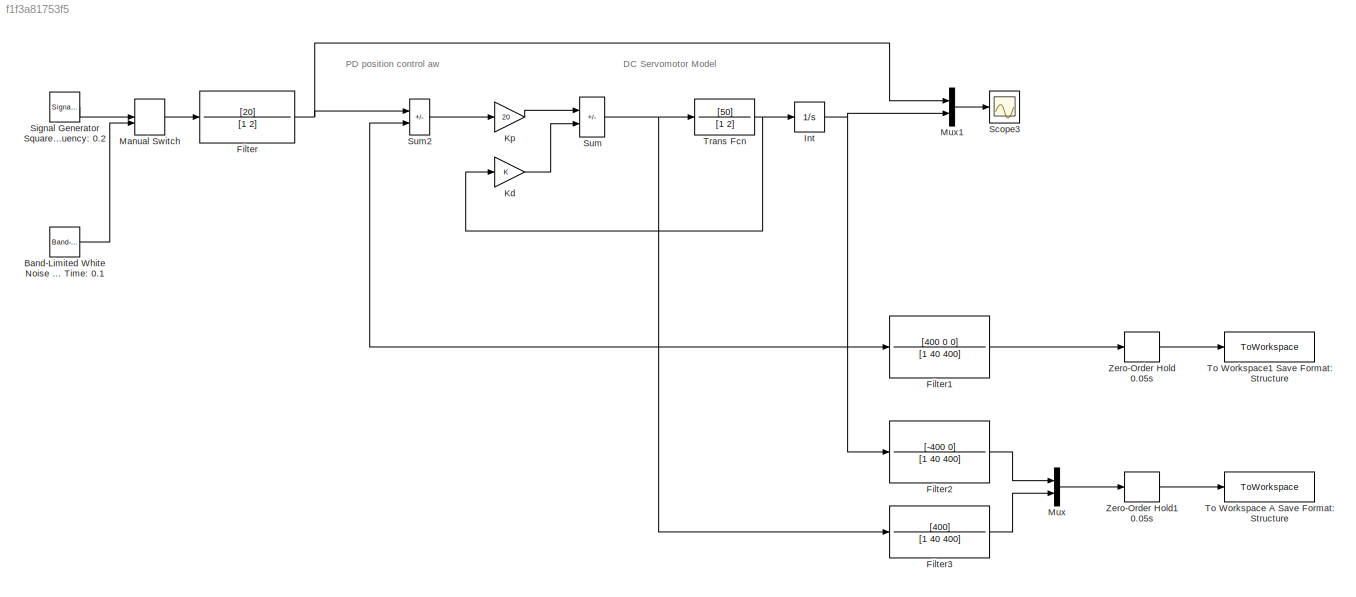
MODEL slx_f1f3a81753f5
KIND model
CONFIG AbsTol = auto
CONFIG EnableMultiTasking = off
CONFIG FixedStep = auto
CONFIG MaxStep = auto
CONFIG MinStep = auto
CONFIG RelTol = 1e-3
CONFIG SampleTimeConstraint = Unconstrained
CONFIG SolverName = VariableStepAuto
CONFIG StartTime = 0.0
CONFIG StopTime = 50.0
BLOCK [Reference] Band-Limited White Noise Noise Power: 0.01 Sample Time: 0.1  REF=simulink/Sources/Band-Limited
White Noise
  SourceBlock = simulink/Sources/Band-Limited\nWhite Noise
  SourceType = Band-Limited White Noise.
BLOCK [TransferFcn] Filter
  Denominator = [1 2]
  Numerator = [20]
BLOCK [TransferFcn] Filter1
  Denominator = [1 40 400]
  Numerator = [400 0 0]
BLOCK [TransferFcn] Filter2
  Denominator = [1 40 400]
  Numerator = [-400 0]
BLOCK [TransferFcn] Filter3
  Denominator = [1 40 400]
  Numerator = [400]
BLOCK [Integrator] Int
BLOCK [Gain] Kd
BLOCK [Gain] Kp
  Gain = 20
BLOCK [ManualSwitch] Manual Switch
  CurrentSetting = 0
BLOCK [Mux] Mux
  DisplayOption = bar
  Inputs = 2
BLOCK [Mux] Mux1
  DisplayOption = bar
  Inputs = 2
BLOCK [Scope] Scope3
  Floating = off
  NumInputPorts = 1
  ScopeSpecificationString = Simulink.scopes.TimeScopeBlockCfg('CurrentConfiguration', extmgr.ConfigurationSet(extmgr.Configuration('Core','General UI',true),extmgr.Configuration('Core','Source UI',true),extmgr.Configuration('Sources','WiredSimulink',true,'DataLoggingVariableName','ScopeData3'),extmgr.Configuration('Visuals','Time Domain',true,'SerializedDisplays',{struct('MinYLimReal','-12.5','MaxYLimReal','12.5','YLabelReal...<+1540ch>
BLOCK [SignalGenerator] Signal Generator Square Amplitude: 1 Frequency: 0.2
  Frequency = 0.2
  Units = rad/sec
  WaveForm = square
BLOCK [Sum] Sum
  IconShape = rectangular
  Inputs = |+-
BLOCK [Sum] Sum2
  IconShape = rectangular
  Inputs = |+-
BLOCK [ToWorkspace] To Workspace A Save Format: Structure
  FixptAsFi = on
  MaxDataPoints = inf
  SampleTime = -1
  SaveFormat = Structure
  VariableName = a
BLOCK [ToWorkspace] To Workspace1 Save Format: Structure
  FixptAsFi = on
  MaxDataPoints = inf
  SampleTime = -1
  SaveFormat = Structure
  VariableName = b
BLOCK [TransferFcn] Trans Fcn
  Denominator = [1 2]
  Numerator = [50]
BLOCK [ZeroOrderHold] Zero-Order Hold 0.05s
  SampleTime = 0.05
BLOCK [ZeroOrderHold] Zero-Order Hold1 0.05s
  SampleTime = 0.05
ANNOTATION (root): DC Servomotor Model
ANNOTATION (root): PD position control aw
LINE Band-Limited White Noise Noise Power: 0.01 Sample Time: 0.1:1 -> Manual Switch:2
LINE Filter1:1 -> Zero-Order Hold 0.05s:1
LINE Filter2:1 -> Mux:1
LINE Filter3:1 -> Mux:2
NET Filter:1 -> Mux1:1, Sum2:1
NET Int:1 -> Filter1:1, Filter2:1, Mux1:2, Sum2:2
LINE Kd:1 -> Sum:2
LINE Kp:1 -> Sum:1
LINE Manual Switch:1 -> Filter:1
LINE Mux1:1 -> Scope3:1
LINE Mux:1 -> Zero-Order Hold1 0.05s:1
LINE Signal Generator Square Amplitude: 1 Frequency: 0.2:1 -> Manual Switch:1
LINE Sum2:1 -> Kp:1
NET Sum:1 -> Filter3:1, Trans Fcn:1
NET Trans Fcn:1 -> Int:1, Kd:1
LINE Zero-Order Hold 0.05s:1 -> To Workspace1 Save Format: Structure:1
LINE Zero-Order Hold1 0.05s:1 -> To Workspace A Save Format: Structure:1
note: NET lines group one-source signal fan-out (src -> all destinations, sorted); 1:1 wires keep LINE
